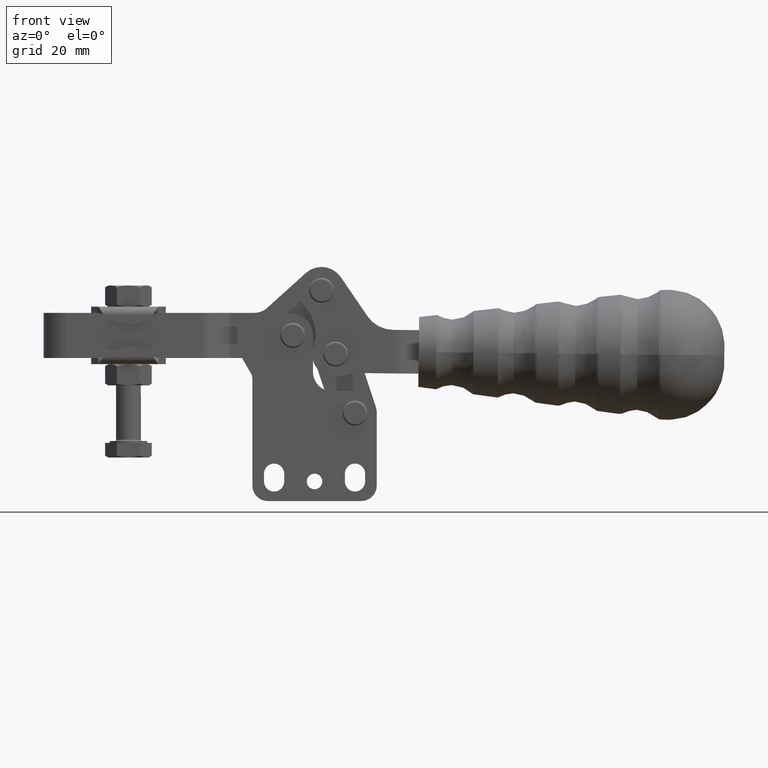
[diagram: clean part render]
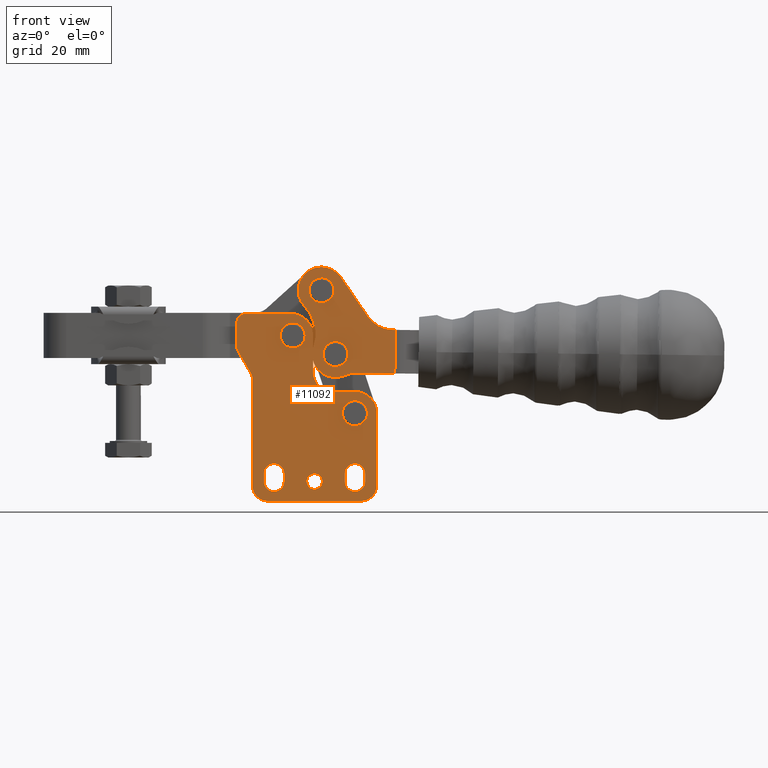
[diagram: same view with one face highlighted and labeled with its STEP entity id]
A machine part, front view. The second image highlights one B-rep face of the part: STEP entity #11092.
In plain terms, the highlighted planar face has unit normal (0, 1, 0).
Its self-contained STEP definition (entity closure, byte-faithful):
#2342=CARTESIAN_POINT('',(87.601346938201942,-72.279744455112819,-19.295722518266494));
#2343=VERTEX_POINT('',#2342);
#2360=CARTESIAN_POINT('',(95.601346938201942,-72.279744455112962,-19.295722518266494));
#2361=VERTEX_POINT('',#2360);
#2368=CARTESIAN_POINT('',(91.601346938201942,-72.279744455112962,-19.295722518266494));
#2369=DIRECTION('',(0.0,1.0,0.0));
#2370=DIRECTION('',(-1.0,0.0,0.0));
#2371=AXIS2_PLACEMENT_3D('',#2368,#2369,#2370);
#2372=CIRCLE('',#2371,3.999999999999997);
#2373=EDGE_CURVE('',#2343,#2361,#2372,.T.);
#2642=CARTESIAN_POINT('',(67.601346938201928,-72.279744455112805,5.704277481733522));
#2643=VERTEX_POINT('',#2642);
#2660=CARTESIAN_POINT('',(75.601346938201914,-72.279744455112819,5.704277481733521));
#2661=VERTEX_POINT('',#2660);
#2668=CARTESIAN_POINT('',(71.601346938201914,-72.279744455112805,5.704277481733521));
#2669=DIRECTION('',(0.0,1.0,0.0));
#2670=DIRECTION('',(-1.0,0.0,0.0));
#2671=AXIS2_PLACEMENT_3D('',#2668,#2669,#2670);
#2672=CIRCLE('',#2671,3.999999999999997);
#2673=EDGE_CURVE('',#2643,#2661,#2672,.T.);
#2900=CARTESIAN_POINT('',(82.933931843106095,-72.279744455112848,2.898555785470791));
#2901=VERTEX_POINT('',#2900);
#2918=CARTESIAN_POINT('',(87.726001515565045,-72.279744455112848,-3.507384290294760));
#2919=VERTEX_POINT('',#2918);
#2926=CARTESIAN_POINT('',(85.329966679335570,-72.279744455112862,-0.304414252411986));
#2927=DIRECTION('',(-1.374426E-015,1.000000000000000,1.837304E-015));
#2928=DIRECTION('',(-0.599008709057368,-2.294501E-015,0.800742509470695));
#2929=AXIS2_PLACEMENT_3D('',#2926,#2927,#2928);
#2930=CIRCLE('',#2929,3.999999999999997);
#2931=EDGE_CURVE('',#2901,#2919,#2930,.T.);
#3218=CARTESIAN_POINT('',(78.446865365537775,-72.279744455112862,23.413580387597946));
#3219=VERTEX_POINT('',#3218);
#3236=CARTESIAN_POINT('',(83.238935037996711,-72.279744455112763,17.007640311832397));
#3237=VERTEX_POINT('',#3236);
#3244=CARTESIAN_POINT('',(80.842900201767236,-72.279744455112777,20.210610349715171));
#3245=DIRECTION('',(-1.374426E-015,1.000000000000000,1.837304E-015));
#3246=DIRECTION('',(-0.599008709057368,-2.294501E-015,0.800742509470695));
#3247=AXIS2_PLACEMENT_3D('',#3244,#3245,#3246);
#3248=CIRCLE('',#3247,3.999999999999997);
#3249=EDGE_CURVE('',#3219,#3237,#3248,.T.);
#6491=CARTESIAN_POINT('',(98.248304831250906,-72.279744455112848,-17.100739427663395));
#6492=VERTEX_POINT('',#6491);
#6508=CARTESIAN_POINT('',(91.601346938201900,-72.279744455112848,-12.295722518266491));
#6509=VERTEX_POINT('',#6508);
#6516=CARTESIAN_POINT('',(91.601346938201900,-72.279744455112848,-19.295722518266494));
#6517=DIRECTION('',(-8.589552E-017,1.0,-8.589552E-017));
#6518=DIRECTION('',(0.707106781186548,1.214746E-016,0.707106781186547));
#6519=AXIS2_PLACEMENT_3D('',#6516,#6517,#6518);
#6520=CIRCLE('',#6519,7.000000000000001);
#6521=EDGE_CURVE('',#6509,#6492,#6520,.T.);
#6743=CARTESIAN_POINT('',(74.482539480594085,-72.279744455112848,24.185004831464187));
#6744=VERTEX_POINT('',#6743);
#6760=CARTESIAN_POINT('',(75.370947535084113,-72.279744455112848,15.081503798513559));
#6761=VERTEX_POINT('',#6760);
#6768=CARTESIAN_POINT('',(80.842900201767264,-72.279744455112848,20.210610349715132));
#6769=DIRECTION('',(1.938432E-016,-1.0,1.324169E-016));
#6770=DIRECTION('',(0.825729280930481,2.347540E-016,0.564066622495987));
#6771=AXIS2_PLACEMENT_3D('',#6768,#6769,#6770);
#6772=CIRCLE('',#6771,7.500000000000000);
#6773=EDGE_CURVE('',#6744,#6761,#6772,.T.);
#8704=CARTESIAN_POINT('',(76.101346938201885,-72.279744455112848,-41.245722518266490));
#8705=VERTEX_POINT('',#8704);
#8721=CARTESIAN_POINT('',(81.101346938201885,-72.279744455112862,-41.245722518266490));
#8722=VERTEX_POINT('',#8721);
#8729=CARTESIAN_POINT('',(78.601346938201885,-72.279744455112862,-41.245722518266490));
#8730=DIRECTION('',(0.0,1.0,0.0));
#8731=DIRECTION('',(-1.0,0.0,0.0));
#8732=AXIS2_PLACEMENT_3D('',#8729,#8730,#8731);
#8733=CIRCLE('',#8732,2.500000000000000);
#8734=EDGE_CURVE('',#8705,#8722,#8733,.T.);
#8744=CARTESIAN_POINT('',(63.303249899345616,-72.279744455112862,-43.543819557122767));
#8745=VERTEX_POINT('',#8744);
#8754=CARTESIAN_POINT('',(68.851346938201885,-72.279744455112862,-41.245722518266490));
#8755=VERTEX_POINT('',#8754);
#8756=CARTESIAN_POINT('',(65.601346938201900,-72.279744455112862,-41.245722518266490));
#8757=DIRECTION('',(8.589552E-017,-1.000000000000000,8.589552E-017));
#8758=DIRECTION('',(-0.707106781186548,-1.214746E-016,-0.707106781186547));
#8759=AXIS2_PLACEMENT_3D('',#8756,#8757,#8758);
#8760=CIRCLE('',#8759,3.250000000000000);
#8761=EDGE_CURVE('',#8745,#8755,#8760,.T.);
#8786=CARTESIAN_POINT('',(89.303249899345616,-72.279744455112862,-43.543819557122767));
#8787=VERTEX_POINT('',#8786);
#8796=CARTESIAN_POINT('',(94.851346938201885,-72.279744455112862,-41.245722518266490));
#8797=VERTEX_POINT('',#8796);
#8798=CARTESIAN_POINT('',(91.601346938201900,-72.279744455112862,-41.245722518266490));
#8799=DIRECTION('',(8.589552E-017,-1.000000000000000,8.589552E-017));
#8800=DIRECTION('',(-0.707106781186549,-1.214746E-016,-0.707106781186546));
#8801=AXIS2_PLACEMENT_3D('',#8798,#8799,#8800);
#8802=CIRCLE('',#8801,3.250000000000000);
#8803=EDGE_CURVE('',#8787,#8797,#8802,.T.);
#8828=CARTESIAN_POINT('',(89.303249899345616,-72.279744455112862,-36.447625479410220));
#8829=VERTEX_POINT('',#8828);
#8838=CARTESIAN_POINT('',(88.351346938201885,-72.279744455112862,-38.745722518266497));
#8839=VERTEX_POINT('',#8838);
#8840=CARTESIAN_POINT('',(91.601346938201900,-72.279744455112862,-38.745722518266497));
#8841=DIRECTION('',(8.589552E-017,-1.0,8.589552E-017));
#8842=DIRECTION('',(0.707106781186548,1.214746E-016,0.707106781186547));
#8843=AXIS2_PLACEMENT_3D('',#8840,#8841,#8842);
#8844=CIRCLE('',#8843,3.250000000000000);
#8845=EDGE_CURVE('',#8829,#8839,#8844,.T.);
#8870=CARTESIAN_POINT('',(63.303249899345602,-72.279744455112862,-36.447625479410206));
#8871=VERTEX_POINT('',#8870);
#8880=CARTESIAN_POINT('',(62.351346938201893,-72.279744455112862,-38.745722518266490));
#8881=VERTEX_POINT('',#8880);
#8882=CARTESIAN_POINT('',(65.601346938201885,-72.279744455112862,-38.745722518266490));
#8883=DIRECTION('',(8.589552E-017,-1.000000000000000,8.589552E-017));
#8884=DIRECTION('',(0.707106781186547,1.214746E-016,0.707106781186548));
#8885=AXIS2_PLACEMENT_3D('',#8882,#8883,#8884);
#8886=CIRCLE('',#8885,3.250000000000000);
#8887=EDGE_CURVE('',#8871,#8881,#8886,.T.);
#8914=CARTESIAN_POINT('',(60.065813032269162,-72.279744455112862,-46.081256424199239));
#8915=VERTEX_POINT('',#8914);
#8931=CARTESIAN_POINT('',(63.601346938201900,-72.279744455112862,-47.545722518266501));
#8932=VERTEX_POINT('',#8931);
#8939=CARTESIAN_POINT('',(63.601346938201900,-72.279744455112862,-42.545722518266501));
#8940=DIRECTION('',(-8.589552E-017,1.000000000000000,-8.589552E-017));
#8941=DIRECTION('',(-0.707106781186547,-1.214746E-016,-0.707106781186547));
#8942=AXIS2_PLACEMENT_3D('',#8939,#8940,#8941);
#8943=CIRCLE('',#8942,4.999999999999999);
#8944=EDGE_CURVE('',#8932,#8915,#8943,.T.);
#8956=CARTESIAN_POINT('',(97.136880844134623,-72.279744455112848,-46.081256424199239));
#8957=VERTEX_POINT('',#8956);
#8973=CARTESIAN_POINT('',(98.601346938201885,-72.279744455112862,-42.545722518266501));
#8974=VERTEX_POINT('',#8973);
#8981=CARTESIAN_POINT('',(93.601346938201885,-72.279744455112862,-42.545722518266501));
#8982=DIRECTION('',(-1.124900E-017,1.000000000000000,1.124900E-017));
#8983=DIRECTION('',(0.707106781186548,1.590849E-017,-0.707106781186547));
#8984=AXIS2_PLACEMENT_3D('',#8981,#8982,#8983);
#8985=CIRCLE('',#8984,4.999999999999999);
#8986=EDGE_CURVE('',#8974,#8957,#8985,.T.);
#8996=CARTESIAN_POINT('',(79.931929555785985,-72.279744455112848,-10.465139900682420));
#8997=VERTEX_POINT('',#8996);
#9006=CARTESIAN_POINT('',(84.351346938201900,-72.279744455112848,-12.295722518266494));
#9007=VERTEX_POINT('',#9006);
#9008=CARTESIAN_POINT('',(84.351346938201900,-72.279744455112848,-6.045722518266494));
#9009=DIRECTION('',(8.589552E-017,-1.0,8.589552E-017));
#9010=DIRECTION('',(-0.707106781186547,-1.214746E-016,-0.707106781186548));
#9011=AXIS2_PLACEMENT_3D('',#9008,#9009,#9010);
#9012=CIRCLE('',#9011,6.250000000000000);
#9013=EDGE_CURVE('',#8997,#9007,#9012,.T.);
#9047=CARTESIAN_POINT('',(58.499124417069105,-72.279744455112848,-7.323112960252287));
#9048=VERTEX_POINT('',#9047);
#9057=CARTESIAN_POINT('',(58.199423149555216,-72.279744455112862,-6.599570095559852));
#9058=VERTEX_POINT('',#9057);
#9059=CARTESIAN_POINT('',(55.601346938201900,-72.279744455112862,-8.099570095559852));
#9060=DIRECTION('',(1.092987E-016,-1.0,2.928650E-017));
#9061=DIRECTION('',(0.965925826289068,1.131543E-016,0.258819045102521));
#9062=AXIS2_PLACEMENT_3D('',#9059,#9060,#9061);
#9063=CIRCLE('',#9062,3.000000000000001);
#9064=EDGE_CURVE('',#9048,#9058,#9063,.T.);
#9091=CARTESIAN_POINT('',(53.703569459334695,-72.279744455112862,1.391921961563702));
#9092=VERTEX_POINT('',#9091);
#9108=CARTESIAN_POINT('',(54.003270726848584,-72.279744455112862,0.668379096871266));
#9109=VERTEX_POINT('',#9108);
#9116=CARTESIAN_POINT('',(56.601346938201900,-72.279744455112862,2.168379096871265));
#9117=DIRECTION('',(-1.092987E-016,1.0,-2.928650E-017));
#9118=DIRECTION('',(-0.965925826289068,-1.131543E-016,-0.258819045102521));
#9119=AXIS2_PLACEMENT_3D('',#9116,#9117,#9118);
#9120=CIRCLE('',#9119,3.000000000000000);
#9121=EDGE_CURVE('',#9109,#9092,#9120,.T.);
#9131=CARTESIAN_POINT('',(54.480026594642254,-72.279744455112848,11.825597825293148));
#9132=VERTEX_POINT('',#9131);
#9141=CARTESIAN_POINT('',(56.601346938201900,-72.279744455112862,12.704277481733506));
#9142=VERTEX_POINT('',#9141);
#9143=CARTESIAN_POINT('',(56.601346938201900,-72.279744455112862,9.704277481733508));
#9144=DIRECTION('',(-1.124900E-017,1.000000000000000,1.124900E-017));
#9145=DIRECTION('',(-0.707106781186549,-1.590849E-017,0.707106781186546));
#9146=AXIS2_PLACEMENT_3D('',#9143,#9144,#9145);
#9147=CIRCLE('',#9146,3.0);
#9148=EDGE_CURVE('',#9132,#9142,#9147,.T.);
#9173=CARTESIAN_POINT('',(76.051094406507730,-72.279744455112848,10.654024950039343));
#9174=VERTEX_POINT('',#9173);
#9183=CARTESIAN_POINT('',(78.101346938201900,-72.279744455112848,5.704277481733513));
#9184=VERTEX_POINT('',#9183);
#9185=CARTESIAN_POINT('',(71.101346938201900,-72.279744455112848,5.704277481733509));
#9186=DIRECTION('',(-8.589552E-017,1.0,-8.589552E-017));
#9187=DIRECTION('',(0.707106781186547,1.214746E-016,0.707106781186548));
#9188=AXIS2_PLACEMENT_3D('',#9185,#9186,#9187);
#9189=CIRCLE('',#9188,7.0);
#9190=EDGE_CURVE('',#9174,#9184,#9189,.T.);
#10154=CARTESIAN_POINT('',(71.101346938201900,-72.279744455112862,12.704277481733506));
#10155=VERTEX_POINT('',#10154);
#10156=CARTESIAN_POINT('',(56.601346938201900,-72.279744455112862,12.704277481733506));
#10157=DIRECTION('',(1.0,0.0,0.0));
#10158=VECTOR('',#10157,14.500000000000000);
#10159=LINE('',#10156,#10158);
#10160=EDGE_CURVE('',#9142,#10155,#10159,.T.);
#10193=CARTESIAN_POINT('',(71.101346938201900,-72.279744455112848,5.704277481733509));
#10194=DIRECTION('',(-8.589552E-017,1.0,-8.589552E-017));
#10195=DIRECTION('',(0.707106781186547,1.214746E-016,0.707106781186548));
#10196=AXIS2_PLACEMENT_3D('',#10193,#10194,#10195);
#10197=CIRCLE('',#10196,7.0);
#10198=EDGE_CURVE('',#10155,#9174,#10197,.T.);
#10218=CARTESIAN_POINT('',(53.601346938201900,-72.279744455112848,9.704277481733508));
#10219=VERTEX_POINT('',#10218);
#10226=CARTESIAN_POINT('',(56.601346938201900,-72.279744455112862,9.704277481733508));
#10227=DIRECTION('',(-1.124900E-017,1.000000000000000,1.124900E-017));
#10228=DIRECTION('',(-0.707106781186549,-1.590849E-017,0.707106781186546));
#10229=AXIS2_PLACEMENT_3D('',#10226,#10227,#10228);
#10230=CIRCLE('',#10229,3.0);
#10231=EDGE_CURVE('',#10219,#9132,#10230,.T.);
#10241=CARTESIAN_POINT('',(53.601346938201900,-72.279744455112848,2.168379096871265));
#10242=VERTEX_POINT('',#10241);
#10251=CARTESIAN_POINT('',(53.601346938201900,-72.279744455112848,9.704277481733508));
#10252=DIRECTION('',(0.0,0.0,-1.0));
#10253=VECTOR('',#10252,7.535898384862243);
#10254=LINE('',#10251,#10253);
#10255=EDGE_CURVE('',#10219,#10242,#10254,.T.);
#10273=CARTESIAN_POINT('',(56.601346938201900,-72.279744455112862,2.168379096871265));
#10274=DIRECTION('',(-1.092987E-016,1.0,-2.928650E-017));
#10275=DIRECTION('',(-0.965925826289068,-1.131543E-016,-0.258819045102521));
#10276=AXIS2_PLACEMENT_3D('',#10273,#10274,#10275);
#10277=CIRCLE('',#10276,3.000000000000000);
#10278=EDGE_CURVE('',#9092,#10242,#10277,.T.);
#10297=CARTESIAN_POINT('',(54.003270726848584,-72.279744455112862,0.668379096871266));
#10298=DIRECTION('',(0.500000000000000,0.0,-0.866025403784439));
#10299=VECTOR('',#10298,8.392304845413259);
#10300=LINE('',#10297,#10299);
#10301=EDGE_CURVE('',#9109,#9058,#10300,.T.);
#10336=CARTESIAN_POINT('',(58.601346938201914,-72.279744455112862,-8.099570095559852));
#10337=VERTEX_POINT('',#10336);
#10344=CARTESIAN_POINT('',(55.601346938201900,-72.279744455112862,-8.099570095559852));
#10345=DIRECTION('',(1.092987E-016,-1.0,2.928650E-017));
#10346=DIRECTION('',(0.965925826289068,1.131543E-016,0.258819045102521));
#10347=AXIS2_PLACEMENT_3D('',#10344,#10345,#10346);
#10348=CIRCLE('',#10347,3.000000000000001);
#10349=EDGE_CURVE('',#10337,#9048,#10348,.T.);
#10369=CARTESIAN_POINT('',(78.101346938201900,-72.279744455112862,-6.045722518266499));
#10370=VERTEX_POINT('',#10369);
#10377=CARTESIAN_POINT('',(84.351346938201900,-72.279744455112848,-6.045722518266494));
#10378=DIRECTION('',(8.589552E-017,-1.0,8.589552E-017));
#10379=DIRECTION('',(-0.707106781186547,-1.214746E-016,-0.707106781186548));
#10380=AXIS2_PLACEMENT_3D('',#10377,#10378,#10379);
#10381=CIRCLE('',#10380,6.250000000000000);
#10382=EDGE_CURVE('',#10370,#8997,#10381,.T.);
#10400=CARTESIAN_POINT('',(91.601346938201900,-72.279744455112848,-12.295722518266491));
#10401=DIRECTION('',(-1.0,0.0,0.0));
#10402=VECTOR('',#10401,7.250000000000000);
#10403=LINE('',#10400,#10402);
#10404=EDGE_CURVE('',#6509,#9007,#10403,.T.);
#10754=CARTESIAN_POINT('',(93.601346938201885,-72.279744455112848,-47.545722518266501));
#10755=VERTEX_POINT('',#10754);
#10762=CARTESIAN_POINT('',(93.601346938201885,-72.279744455112848,-47.545722518266501));
#10763=DIRECTION('',(-1.0,0.0,0.0));
#10764=VECTOR('',#10763,29.999999999999986);
#10765=LINE('',#10762,#10764);
#10766=EDGE_CURVE('',#10755,#8932,#10765,.T.);
#10785=CARTESIAN_POINT('',(98.601346938201885,-72.279744455112862,-19.295722518266494));
#10786=VERTEX_POINT('',#10785);
#10793=CARTESIAN_POINT('',(98.601346938201885,-72.279744455112862,-19.295722518266494));
#10794=DIRECTION('',(0.0,0.0,-1.0));
#10795=VECTOR('',#10794,23.250000000000007);
#10796=LINE('',#10793,#10795);
#10797=EDGE_CURVE('',#10786,#8974,#10796,.T.);
#10808=CARTESIAN_POINT('',(93.601346938201885,-72.279744455112862,-42.545722518266501));
#10809=DIRECTION('',(-1.124900E-017,1.000000000000000,1.124900E-017));
#10810=DIRECTION('',(0.707106781186548,1.590849E-017,-0.707106781186547));
#10811=AXIS2_PLACEMENT_3D('',#10808,#10809,#10810);
#10812=CIRCLE('',#10811,4.999999999999999);
#10813=EDGE_CURVE('',#8957,#10755,#10812,.T.);
#10826=CARTESIAN_POINT('',(78.601346938201900,-72.279744455112862,-8.920722518266491));
#10827=DIRECTION('',(0.0,1.0,0.0));
#10828=DIRECTION('',(0.0,0.0,1.0));
#10829=AXIS2_PLACEMENT_3D('',#10826,#10827,#10828);
#10830=PLANE('',#10829);
#10831=CARTESIAN_POINT('',(78.101346938201900,-72.279744455112834,1.694849771695797));
#10832=VERTEX_POINT('',#10831);
#10833=CARTESIAN_POINT('',(78.101346938201900,-72.279744455112834,1.694849771695797));
#10834=DIRECTION('',(0.0,0.0,1.0));
#10835=VECTOR('',#10834,4.009427710037716);
#10836=LINE('',#10833,#10835);
#10837=EDGE_CURVE('',#10832,#9184,#10836,.T.);
#10838=ORIENTED_EDGE('',*,*,#10837,.T.);
#10839=ORIENTED_EDGE('',*,*,#9190,.F.);
#10840=ORIENTED_EDGE('',*,*,#10198,.F.);
#10841=ORIENTED_EDGE('',*,*,#10160,.F.);
#10842=ORIENTED_EDGE('',*,*,#9148,.F.);
#10843=ORIENTED_EDGE('',*,*,#10231,.F.);
#10844=ORIENTED_EDGE('',*,*,#10255,.T.);
#10845=ORIENTED_EDGE('',*,*,#10278,.F.);
#10846=ORIENTED_EDGE('',*,*,#9121,.F.);
#10847=ORIENTED_EDGE('',*,*,#10301,.T.);
#10848=ORIENTED_EDGE('',*,*,#9064,.F.);
#10849=ORIENTED_EDGE('',*,*,#10349,.F.);
#10850=CARTESIAN_POINT('',(58.601346938201893,-72.279744455112862,-42.545722518266501));
#10851=VERTEX_POINT('',#10850);
#10852=CARTESIAN_POINT('',(58.601346938201914,-72.279744455112862,-8.099570095559852));
#10853=DIRECTION('',(0.0,0.0,-1.0));
#10854=VECTOR('',#10853,34.446152422706646);
#10855=LINE('',#10852,#10854);
#10856=EDGE_CURVE('',#10337,#10851,#10855,.T.);
#10857=ORIENTED_EDGE('',*,*,#10856,.T.);
#10858=CARTESIAN_POINT('',(63.601346938201900,-72.279744455112862,-42.545722518266501));
#10859=DIRECTION('',(-8.589552E-017,1.000000000000000,-8.589552E-017));
#10860=DIRECTION('',(-0.707106781186547,-1.214746E-016,-0.707106781186547));
#10861=AXIS2_PLACEMENT_3D('',#10858,#10859,#10860);
#10862=CIRCLE('',#10861,4.999999999999999);
#10863=EDGE_CURVE('',#8915,#10851,#10862,.T.);
#10864=ORIENTED_EDGE('',*,*,#10863,.F.);
#10865=ORIENTED_EDGE('',*,*,#8944,.F.);
#10866=ORIENTED_EDGE('',*,*,#10766,.F.);
#10867=ORIENTED_EDGE('',*,*,#10813,.F.);
#10868=ORIENTED_EDGE('',*,*,#8986,.F.);
#10869=ORIENTED_EDGE('',*,*,#10797,.F.);
#10870=CARTESIAN_POINT('',(91.601346938201900,-72.279744455112848,-19.295722518266494));
#10871=DIRECTION('',(-8.589552E-017,1.0,-8.589552E-017));
#10872=DIRECTION('',(0.707106781186548,1.214746E-016,0.707106781186547));
#10873=AXIS2_PLACEMENT_3D('',#10870,#10871,#10872);
#10874=CIRCLE('',#10873,7.000000000000001);
#10875=EDGE_CURVE('',#6492,#10786,#10874,.T.);
#10876=ORIENTED_EDGE('',*,*,#10875,.F.);
#10877=ORIENTED_EDGE('',*,*,#6521,.F.);
#10878=ORIENTED_EDGE('',*,*,#10404,.T.);
#10879=ORIENTED_EDGE('',*,*,#9013,.F.);
#10880=ORIENTED_EDGE('',*,*,#10382,.F.);
#10881=CARTESIAN_POINT('',(78.101346938201900,-72.279744455112834,-2.303678276519846));
#10882=VERTEX_POINT('',#10881);
#10883=CARTESIAN_POINT('',(78.101346938201900,-72.279744455112862,-6.045722518266499));
#10884=DIRECTION('',(0.0,0.0,1.0));
#10885=VECTOR('',#10884,3.742044241746653);
#10886=LINE('',#10883,#10885);
#10887=EDGE_CURVE('',#10370,#10882,#10886,.T.);
#10888=ORIENTED_EDGE('',*,*,#10887,.T.);
#10889=CARTESIAN_POINT('',(88.288501994037716,-72.279744455112848,-7.196225972972929));
#10890=VERTEX_POINT('',#10889);
#10891=CARTESIAN_POINT('',(85.329966679335627,-72.279744455112848,-0.304414252412022));
#10892=DIRECTION('',(1.747518E-016,-1.0,-5.837841E-017));
#10893=DIRECTION('',(-0.948474980479790,-1.842450E-016,0.316852033927294));
#10894=AXIS2_PLACEMENT_3D('',#10891,#10892,#10893);
#10895=CIRCLE('',#10894,7.500000000000001);
#10896=EDGE_CURVE('',#10882,#10890,#10895,.T.);
#10897=ORIENTED_EDGE('',*,*,#10896,.T.);
#10898=CARTESIAN_POINT('',(92.348841061114243,-72.279744455112848,-6.385976750061114));
#10899=VERTEX_POINT('',#10898);
#10900=CARTESIAN_POINT('',(92.233215746973812,-72.279744455112848,-16.385308267054135));
#10901=DIRECTION('',(-1.053421E-018,1.000000000000000,-9.110030E-017));
#10902=DIRECTION('',(-0.011562531414043,-9.110639E-017,-0.999933151699302));
#10903=AXIS2_PLACEMENT_3D('',#10900,#10901,#10902);
#10904=CIRCLE('',#10903,10.0);
#10905=EDGE_CURVE('',#10890,#10899,#10904,.T.);
#10906=ORIENTED_EDGE('',*,*,#10905,.T.);
#10907=CARTESIAN_POINT('',(104.404366179977560,-72.279744455112848,-6.525378456727959));
#10908=VERTEX_POINT('',#10907);
#10909=CARTESIAN_POINT('',(92.348841061114243,-72.279744455112848,-6.385976750061114));
#10910=DIRECTION('',(0.999933151699302,0.0,-0.011562531414043));
#10911=VECTOR('',#10910,12.056331064107603);
#10912=LINE('',#10909,#10911);
#10913=EDGE_CURVE('',#10899,#10908,#10912,.T.);
#10914=ORIENTED_EDGE('',*,*,#10913,.T.);
#10915=CARTESIAN_POINT('',(104.566241619774150,-72.279744455112848,7.473685667062282));
#10916=VERTEX_POINT('',#10915);
#10917=CARTESIAN_POINT('',(104.566241619774150,-72.279744455112848,7.473685667062282));
#10918=DIRECTION('',(-0.011562531414042,0.0,-0.999933151699302));
#10919=VECTOR('',#10918,14.000000000000012);
#10920=LINE('',#10917,#10919);
#10921=EDGE_CURVE('',#10916,#10908,#10920,.T.);
#10922=ORIENTED_EDGE('',*,*,#10921,.F.);
#10923=CARTESIAN_POINT('',(103.784573399041340,-72.279744455112848,7.482724334639432));
#10924=VERTEX_POINT('',#10923);
#10925=CARTESIAN_POINT('',(104.566241619774150,-72.279744455112848,7.473685667062282));
#10926=DIRECTION('',(-0.999933151699302,0.0,0.011562531414042));
#10927=VECTOR('',#10926,0.781720477418348);
#10928=LINE('',#10925,#10927);
#10929=EDGE_CURVE('',#10916,#10924,#10928,.T.);
#10930=ORIENTED_EDGE('',*,*,#10929,.T.);
#10931=CARTESIAN_POINT('',(95.642905903876965,-72.279744455112848,11.841389626672553));
#10932=VERTEX_POINT('',#10931);
#10933=CARTESIAN_POINT('',(103.900198713181770,-72.279744455112848,17.482055851632417));
#10934=DIRECTION('',(-1.938432E-016,1.0,-1.324169E-016));
#10935=DIRECTION('',(0.825729280930481,2.347540E-016,0.564066622495987));
#10936=AXIS2_PLACEMENT_3D('',#10933,#10934,#10935);
#10937=CIRCLE('',#10936,10.000000000000020);
#10938=EDGE_CURVE('',#10924,#10932,#10937,.T.);
#10939=ORIENTED_EDGE('',*,*,#10938,.T.);
#10940=CARTESIAN_POINT('',(87.035869808745886,-72.279744455112848,24.441110018435033));
#10941=VERTEX_POINT('',#10940);
#10942=CARTESIAN_POINT('',(95.642905903876965,-72.279744455112848,11.841389626672553));
#10943=DIRECTION('',(-0.564066622495987,0.0,0.825729280930481));
#10944=VECTOR('',#10943,15.258899838896790);
#10945=LINE('',#10942,#10944);
#10946=EDGE_CURVE('',#10932,#10941,#10945,.T.);
#10947=ORIENTED_EDGE('',*,*,#10946,.T.);
#10948=CARTESIAN_POINT('',(80.842900201767264,-72.279744455112848,20.210610349715132));
#10949=DIRECTION('',(1.938432E-016,-1.0,1.324169E-016));
#10950=DIRECTION('',(0.825729280930481,2.347540E-016,0.564066622495987));
#10951=AXIS2_PLACEMENT_3D('',#10948,#10949,#10950);
#10952=CIRCLE('',#10951,7.500000000000000);
#10953=EDGE_CURVE('',#10941,#6744,#10952,.T.);
#10954=ORIENTED_EDGE('',*,*,#10953,.T.);
#10955=ORIENTED_EDGE('',*,*,#6773,.T.);
#10956=CARTESIAN_POINT('',(78.216404325737201,-72.279744455112848,2.071976002042680));
#10957=VERTEX_POINT('',#10956);
#10958=CARTESIAN_POINT('',(65.886229579499940,-72.279744455112848,6.191052443097495));
#10959=DIRECTION('',(-1.747518E-016,1.0,5.837841E-017));
#10960=DIRECTION('',(-0.948474980479790,-1.842450E-016,0.316852033927293));
#10961=AXIS2_PLACEMENT_3D('',#10958,#10959,#10960);
#10962=CIRCLE('',#10961,13.000000000000002);
#10963=EDGE_CURVE('',#6761,#10957,#10962,.T.);
#10964=ORIENTED_EDGE('',*,*,#10963,.T.);
#10965=CARTESIAN_POINT('',(85.329966679335627,-72.279744455112848,-0.304414252412022));
#10966=DIRECTION('',(1.747518E-016,-1.0,-5.837841E-017));
#10967=DIRECTION('',(-0.948474980479790,-1.842450E-016,0.316852033927294));
#10968=AXIS2_PLACEMENT_3D('',#10965,#10966,#10967);
#10969=CIRCLE('',#10968,7.500000000000001);
#10970=EDGE_CURVE('',#10957,#10832,#10969,.T.);
#10971=ORIENTED_EDGE('',*,*,#10970,.T.);
#10972=EDGE_LOOP('',(#10838,#10839,#10840,#10841,#10842,#10843,#10844,#10845,#10846,#10847,#10848,#10849,#10857,#10864,#10865,#10866,#10867,#10868,#10869,#10876,#10877,#10878,#10879,#10880,#10888,#10897,#10906,#10914,#10922,#10930,#10939,#10947,#10954,#10955,#10964,#10971));
#10973=FACE_OUTER_BOUND('',#10972,.T.);
#10974=ORIENTED_EDGE('',*,*,#2373,.T.);
#10975=CARTESIAN_POINT('',(91.601346938201942,-72.279744455112962,-19.295722518266494));
#10976=DIRECTION('',(0.0,1.0,0.0));
#10977=DIRECTION('',(-1.0,0.0,0.0));
#10978=AXIS2_PLACEMENT_3D('',#10975,#10976,#10977);
#10979=CIRCLE('',#10978,3.999999999999997);
#10980=EDGE_CURVE('',#2361,#2343,#10979,.T.);
#10981=ORIENTED_EDGE('',*,*,#10980,.T.);
#10982=EDGE_LOOP('',(#10974,#10981));
#10983=FACE_BOUND('',#10982,.T.);
#10984=ORIENTED_EDGE('',*,*,#2673,.T.);
#10985=CARTESIAN_POINT('',(71.601346938201914,-72.279744455112805,5.704277481733521));
#10986=DIRECTION('',(0.0,1.0,0.0));
#10987=DIRECTION('',(-1.0,0.0,0.0));
#10988=AXIS2_PLACEMENT_3D('',#10985,#10986,#10987);
#10989=CIRCLE('',#10988,3.999999999999997);
#10990=EDGE_CURVE('',#2661,#2643,#10989,.T.);
#10991=ORIENTED_EDGE('',*,*,#10990,.T.);
#10992=EDGE_LOOP('',(#10984,#10991));
#10993=FACE_BOUND('',#10992,.T.);
#10994=ORIENTED_EDGE('',*,*,#2931,.T.);
#10995=CARTESIAN_POINT('',(85.329966679335570,-72.279744455112862,-0.304414252411986));
#10996=DIRECTION('',(-1.374426E-015,1.000000000000000,1.837304E-015));
#10997=DIRECTION('',(-0.599008709057368,-2.294501E-015,0.800742509470695));
#10998=AXIS2_PLACEMENT_3D('',#10995,#10996,#10997);
#10999=CIRCLE('',#10998,3.999999999999997);
#11000=EDGE_CURVE('',#2919,#2901,#10999,.T.);
#11001=ORIENTED_EDGE('',*,*,#11000,.T.);
#11002=EDGE_LOOP('',(#10994,#11001));
#11003=FACE_BOUND('',#11002,.T.);
#11004=ORIENTED_EDGE('',*,*,#3249,.T.);
#11005=CARTESIAN_POINT('',(80.842900201767236,-72.279744455112777,20.210610349715171));
#11006=DIRECTION('',(-1.374426E-015,1.000000000000000,1.837304E-015));
#11007=DIRECTION('',(-0.599008709057368,-2.294501E-015,0.800742509470695));
#11008=AXIS2_PLACEMENT_3D('',#11005,#11006,#11007);
#11009=CIRCLE('',#11008,3.999999999999997);
#11010=EDGE_CURVE('',#3237,#3219,#11009,.T.);
#11011=ORIENTED_EDGE('',*,*,#11010,.T.);
#11012=EDGE_LOOP('',(#11004,#11011));
#11013=FACE_BOUND('',#11012,.T.);
#11014=CARTESIAN_POINT('',(78.601346938201885,-72.279744455112862,-41.245722518266490));
#11015=DIRECTION('',(0.0,1.0,0.0));
#11016=DIRECTION('',(-1.0,0.0,0.0));
#11017=AXIS2_PLACEMENT_3D('',#11014,#11015,#11016);
#11018=CIRCLE('',#11017,2.500000000000000);
#11019=EDGE_CURVE('',#8722,#8705,#11018,.T.);
#11020=ORIENTED_EDGE('',*,*,#11019,.T.);
#11021=ORIENTED_EDGE('',*,*,#8734,.T.);
#11022=EDGE_LOOP('',(#11020,#11021));
#11023=FACE_BOUND('',#11022,.T.);
#11024=CARTESIAN_POINT('',(88.351346938201885,-72.279744455112862,-41.245722518266497));
#11025=VERTEX_POINT('',#11024);
#11026=CARTESIAN_POINT('',(88.351346938201885,-72.279744455112862,-41.245722518266497));
#11027=DIRECTION('',(0.0,0.0,1.0));
#11028=VECTOR('',#11027,2.500000000000000);
#11029=LINE('',#11026,#11028);
#11030=EDGE_CURVE('',#11025,#8839,#11029,.T.);
#11031=ORIENTED_EDGE('',*,*,#11030,.T.);
#11032=ORIENTED_EDGE('',*,*,#8845,.F.);
#11033=CARTESIAN_POINT('',(94.851346938201885,-72.279744455112862,-38.745722518266497));
#11034=VERTEX_POINT('',#11033);
#11035=CARTESIAN_POINT('',(91.601346938201900,-72.279744455112862,-38.745722518266497));
#11036=DIRECTION('',(8.589552E-017,-1.0,8.589552E-017));
#11037=DIRECTION('',(0.707106781186548,1.214746E-016,0.707106781186547));
#11038=AXIS2_PLACEMENT_3D('',#11035,#11036,#11037);
#11039=CIRCLE('',#11038,3.250000000000000);
#11040=EDGE_CURVE('',#11034,#8829,#11039,.T.);
#11041=ORIENTED_EDGE('',*,*,#11040,.F.);
#11042=CARTESIAN_POINT('',(94.851346938201885,-72.279744455112862,-38.745722518266497));
#11043=DIRECTION('',(0.0,0.0,-1.0));
#11044=VECTOR('',#11043,2.499999999999993);
#11045=LINE('',#11042,#11044);
#11046=EDGE_CURVE('',#11034,#8797,#11045,.T.);
#11047=ORIENTED_EDGE('',*,*,#11046,.T.);
#11048=ORIENTED_EDGE('',*,*,#8803,.F.);
#11049=CARTESIAN_POINT('',(91.601346938201900,-72.279744455112862,-41.245722518266490));
#11050=DIRECTION('',(8.589552E-017,-1.000000000000000,8.589552E-017));
#11051=DIRECTION('',(-0.707106781186549,-1.214746E-016,-0.707106781186546));
#11052=AXIS2_PLACEMENT_3D('',#11049,#11050,#11051);
#11053=CIRCLE('',#11052,3.250000000000000);
#11054=EDGE_CURVE('',#11025,#8787,#11053,.T.);
#11055=ORIENTED_EDGE('',*,*,#11054,.F.);
#11056=EDGE_LOOP('',(#11031,#11032,#11041,#11047,#11048,#11055));
#11057=FACE_BOUND('',#11056,.T.);
#11058=CARTESIAN_POINT('',(62.351346938201893,-72.279744455112862,-41.245722518266490));
#11059=VERTEX_POINT('',#11058);
#11060=CARTESIAN_POINT('',(62.351346938201893,-72.279744455112862,-41.245722518266490));
#11061=DIRECTION('',(0.0,0.0,1.0));
#11062=VECTOR('',#11061,2.500000000000000);
#11063=LINE('',#11060,#11062);
#11064=EDGE_CURVE('',#11059,#8881,#11063,.T.);
#11065=ORIENTED_EDGE('',*,*,#11064,.T.);
#11066=ORIENTED_EDGE('',*,*,#8887,.F.);
#11067=CARTESIAN_POINT('',(68.851346938201885,-72.279744455112862,-38.745722518266490));
#11068=VERTEX_POINT('',#11067);
#11069=CARTESIAN_POINT('',(65.601346938201885,-72.279744455112862,-38.745722518266490));
#11070=DIRECTION('',(8.589552E-017,-1.000000000000000,8.589552E-017));
#11071=DIRECTION('',(0.707106781186547,1.214746E-016,0.707106781186548));
#11072=AXIS2_PLACEMENT_3D('',#11069,#11070,#11071);
#11073=CIRCLE('',#11072,3.250000000000000);
#11074=EDGE_CURVE('',#11068,#8871,#11073,.T.);
#11075=ORIENTED_EDGE('',*,*,#11074,.F.);
#11076=CARTESIAN_POINT('',(68.851346938201885,-72.279744455112862,-38.745722518266490));
#11077=DIRECTION('',(0.0,0.0,-1.0));
#11078=VECTOR('',#11077,2.500000000000000);
#11079=LINE('',#11076,#11078);
#11080=EDGE_CURVE('',#11068,#8755,#11079,.T.);
#11081=ORIENTED_EDGE('',*,*,#11080,.T.);
#11082=ORIENTED_EDGE('',*,*,#8761,.F.);
#11083=CARTESIAN_POINT('',(65.601346938201900,-72.279744455112862,-41.245722518266490));
#11084=DIRECTION('',(8.589552E-017,-1.000000000000000,8.589552E-017));
#11085=DIRECTION('',(-0.707106781186548,-1.214746E-016,-0.707106781186547));
#11086=AXIS2_PLACEMENT_3D('',#11083,#11084,#11085);
#11087=CIRCLE('',#11086,3.250000000000000);
#11088=EDGE_CURVE('',#11059,#8745,#11087,.T.);
#11089=ORIENTED_EDGE('',*,*,#11088,.F.);
#11090=EDGE_LOOP('',(#11065,#11066,#11075,#11081,#11082,#11089));
#11091=FACE_BOUND('',#11090,.T.);
#11092=ADVANCED_FACE('',(#10973,#10983,#10993,#11003,#11013,#11023,#11057,#11091),#10830,.F.);